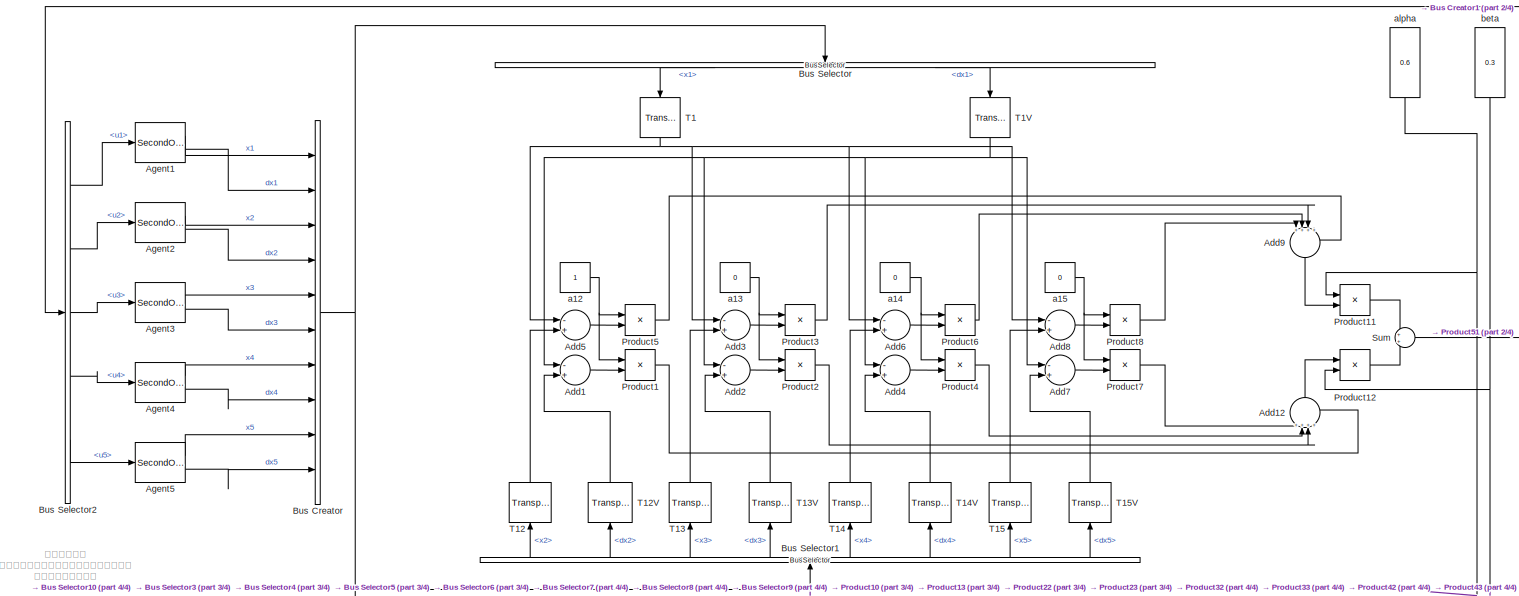
[diagram: root canvas - part 1/4, full width, top band]
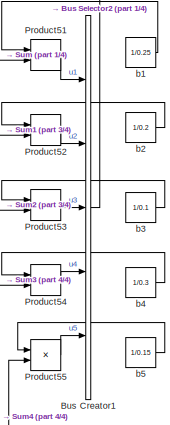
[diagram: root canvas - part 2/4, top right region]
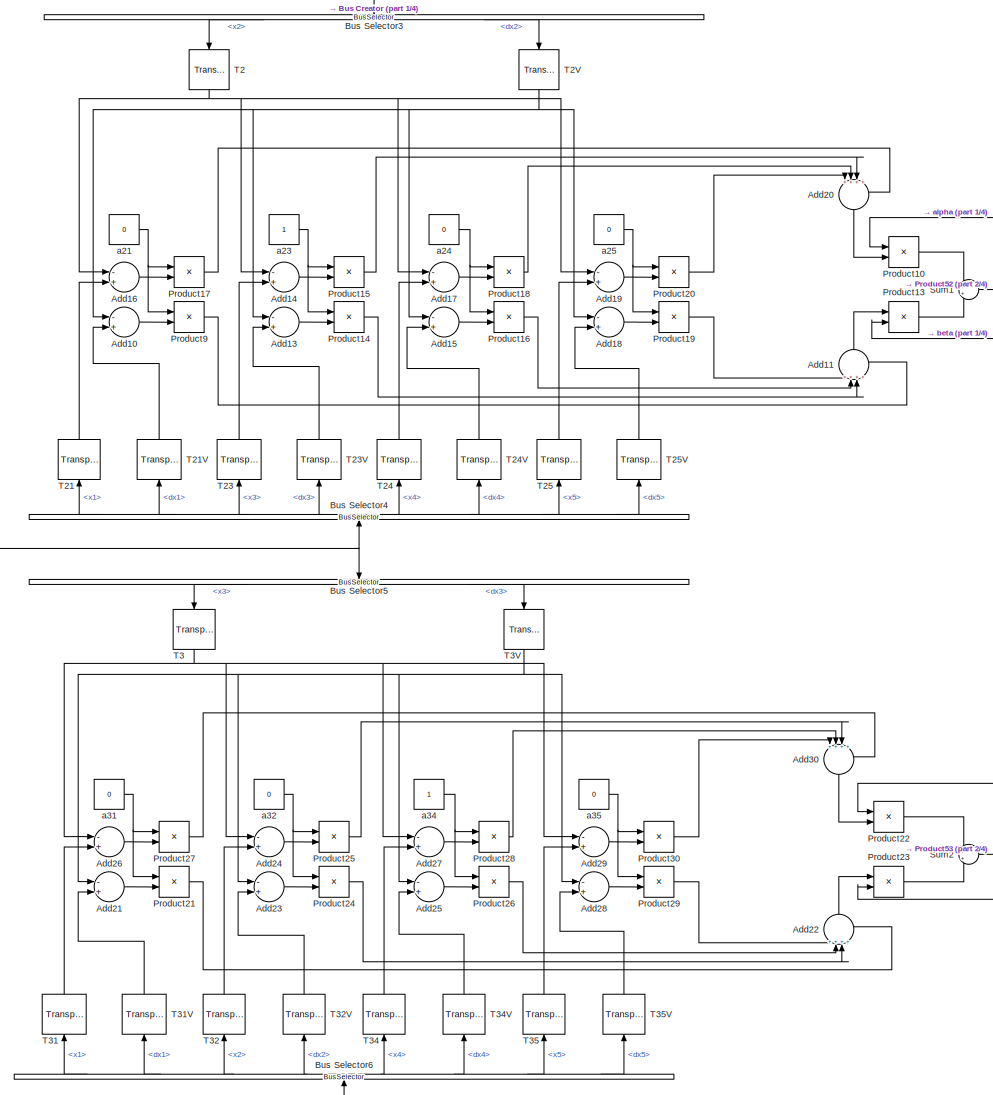
[diagram: root canvas - part 3/4, central region]
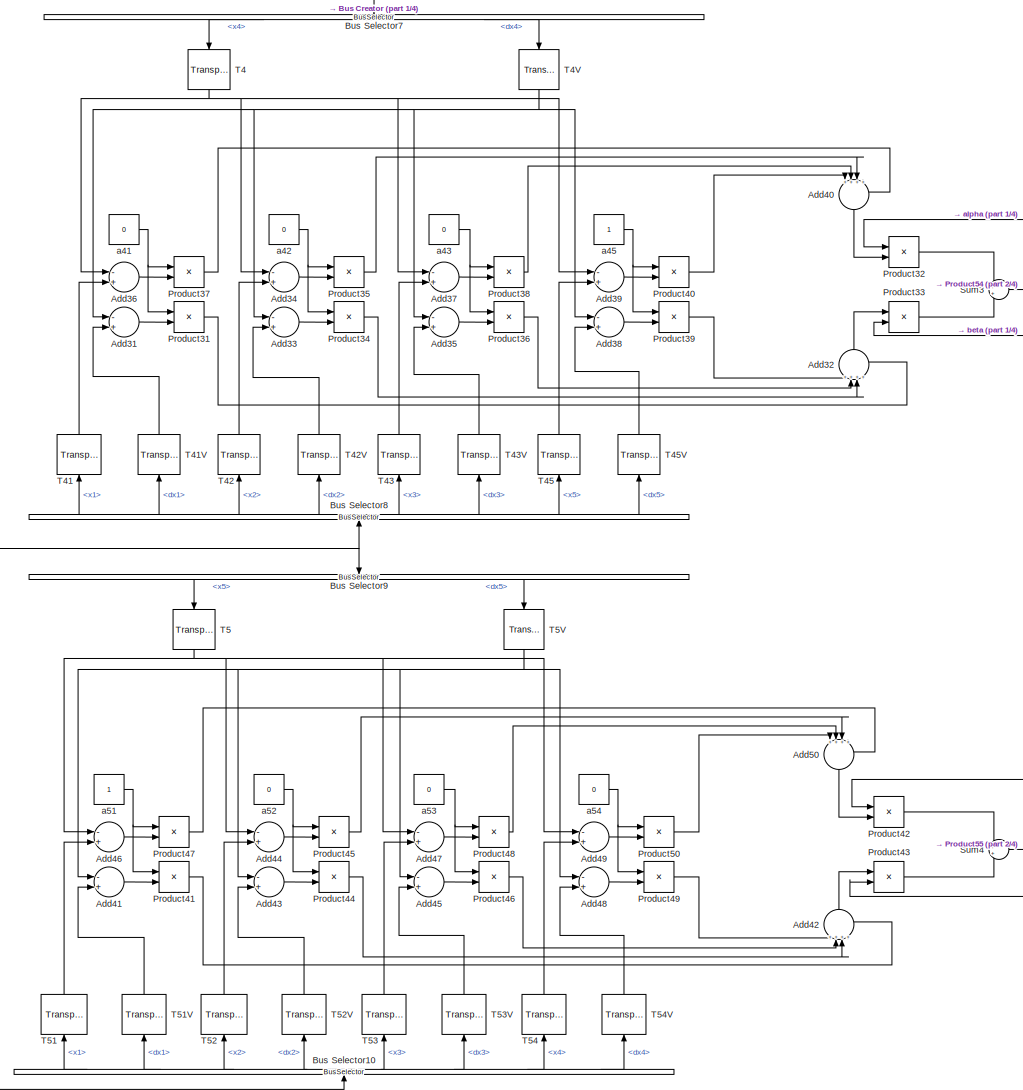
[diagram: root canvas - part 4/4, bottom center region]
MODEL slx_9dfde8e2399d
KIND model
CONFIG AbsTol = auto
CONFIG EnableMultiTasking = off
CONFIG FixedStep = auto
CONFIG MaxStep = auto
CONFIG MinStep = auto
CONFIG RelTol = 1e-3
CONFIG SampleTimeConstraint = Unconstrained
CONFIG Solver = VariableStepAuto
CONFIG SolverName = VariableStepAuto
CONFIG StartTime = 0.0
CONFIG StopTime = 50
BLOCK [Sum] Add1
  InputSameDT = off
  Inputs = -+
  OutDataTypeStr = Inherit: Inherit via internal rule
  Ports = [2, 1]
  SaturateOnIntegerOverflow = off
BLOCK [Sum] Add10
  InputSameDT = off
  Inputs = -+
  OutDataTypeStr = Inherit: Inherit via internal rule
  Ports = [2, 1]
  SaturateOnIntegerOverflow = off
BLOCK [Sum] Add11
  IconShape = round
  InputSameDT = off
  Inputs = ++++
  OutDataTypeStr = Inherit: Inherit via internal rule
  Ports = [4, 1]
  SaturateOnIntegerOverflow = off
BLOCK [Sum] Add12
  IconShape = round
  InputSameDT = off
  Inputs = ++++
  OutDataTypeStr = Inherit: Inherit via internal rule
  Ports = [4, 1]
  SaturateOnIntegerOverflow = off
BLOCK [Sum] Add13
  InputSameDT = off
  Inputs = -+
  OutDataTypeStr = Inherit: Inherit via internal rule
  Ports = [2, 1]
  SaturateOnIntegerOverflow = off
BLOCK [Sum] Add14
  InputSameDT = off
  Inputs = -+
  OutDataTypeStr = Inherit: Inherit via internal rule
  Ports = [2, 1]
  SaturateOnIntegerOverflow = off
BLOCK [Sum] Add15
  InputSameDT = off
  Inputs = -+
  OutDataTypeStr = Inherit: Inherit via internal rule
  Ports = [2, 1]
  SaturateOnIntegerOverflow = off
BLOCK [Sum] Add16
  InputSameDT = off
  Inputs = -+
  OutDataTypeStr = Inherit: Inherit via internal rule
  Ports = [2, 1]
  SaturateOnIntegerOverflow = off
BLOCK [Sum] Add17
  InputSameDT = off
  Inputs = -+
  OutDataTypeStr = Inherit: Inherit via internal rule
  Ports = [2, 1]
  SaturateOnIntegerOverflow = off
BLOCK [Sum] Add18
  InputSameDT = off
  Inputs = -+
  OutDataTypeStr = Inherit: Inherit via internal rule
  Ports = [2, 1]
  SaturateOnIntegerOverflow = off
BLOCK [Sum] Add19
  InputSameDT = off
  Inputs = -+
  OutDataTypeStr = Inherit: Inherit via internal rule
  Ports = [2, 1]
  SaturateOnIntegerOverflow = off
BLOCK [Sum] Add2
  InputSameDT = off
  Inputs = -+
  OutDataTypeStr = Inherit: Inherit via internal rule
  Ports = [2, 1]
  SaturateOnIntegerOverflow = off
BLOCK [Sum] Add20
  IconShape = round
  InputSameDT = off
  Inputs = ++++
  OutDataTypeStr = Inherit: Inherit via internal rule
  Ports = [4, 1]
  SaturateOnIntegerOverflow = off
BLOCK [Sum] Add21
  InputSameDT = off
  Inputs = -+
  OutDataTypeStr = Inherit: Inherit via internal rule
  Ports = [2, 1]
  SaturateOnIntegerOverflow = off
BLOCK [Sum] Add22
  IconShape = round
  InputSameDT = off
  Inputs = ++++
  OutDataTypeStr = Inherit: Inherit via internal rule
  Ports = [4, 1]
  SaturateOnIntegerOverflow = off
BLOCK [Sum] Add23
  InputSameDT = off
  Inputs = -+
  OutDataTypeStr = Inherit: Inherit via internal rule
  Ports = [2, 1]
  SaturateOnIntegerOverflow = off
BLOCK [Sum] Add24
  InputSameDT = off
  Inputs = -+
  OutDataTypeStr = Inherit: Inherit via internal rule
  Ports = [2, 1]
  SaturateOnIntegerOverflow = off
BLOCK [Sum] Add25
  InputSameDT = off
  Inputs = -+
  OutDataTypeStr = Inherit: Inherit via internal rule
  Ports = [2, 1]
  SaturateOnIntegerOverflow = off
BLOCK [Sum] Add26
  InputSameDT = off
  Inputs = -+
  OutDataTypeStr = Inherit: Inherit via internal rule
  Ports = [2, 1]
  SaturateOnIntegerOverflow = off
BLOCK [Sum] Add27
  InputSameDT = off
  Inputs = -+
  OutDataTypeStr = Inherit: Inherit via internal rule
  Ports = [2, 1]
  SaturateOnIntegerOverflow = off
BLOCK [Sum] Add28
  InputSameDT = off
  Inputs = -+
  OutDataTypeStr = Inherit: Inherit via internal rule
  Ports = [2, 1]
  SaturateOnIntegerOverflow = off
BLOCK [Sum] Add29
  InputSameDT = off
  Inputs = -+
  OutDataTypeStr = Inherit: Inherit via internal rule
  Ports = [2, 1]
  SaturateOnIntegerOverflow = off
BLOCK [Sum] Add3
  InputSameDT = off
  Inputs = -+
  OutDataTypeStr = Inherit: Inherit via internal rule
  Ports = [2, 1]
  SaturateOnIntegerOverflow = off
BLOCK [Sum] Add30
  IconShape = round
  InputSameDT = off
  Inputs = ++++
  OutDataTypeStr = Inherit: Inherit via internal rule
  Ports = [4, 1]
  SaturateOnIntegerOverflow = off
BLOCK [Sum] Add31
  InputSameDT = off
  Inputs = -+
  OutDataTypeStr = Inherit: Inherit via internal rule
  Ports = [2, 1]
  SaturateOnIntegerOverflow = off
BLOCK [Sum] Add32
  IconShape = round
  InputSameDT = off
  Inputs = ++++
  OutDataTypeStr = Inherit: Inherit via internal rule
  Ports = [4, 1]
  SaturateOnIntegerOverflow = off
BLOCK [Sum] Add33
  InputSameDT = off
  Inputs = -+
  OutDataTypeStr = Inherit: Inherit via internal rule
  Ports = [2, 1]
  SaturateOnIntegerOverflow = off
BLOCK [Sum] Add34
  InputSameDT = off
  Inputs = -+
  OutDataTypeStr = Inherit: Inherit via internal rule
  Ports = [2, 1]
  SaturateOnIntegerOverflow = off
BLOCK [Sum] Add35
  InputSameDT = off
  Inputs = -+
  OutDataTypeStr = Inherit: Inherit via internal rule
  Ports = [2, 1]
  SaturateOnIntegerOverflow = off
BLOCK [Sum] Add36
  InputSameDT = off
  Inputs = -+
  OutDataTypeStr = Inherit: Inherit via internal rule
  Ports = [2, 1]
  SaturateOnIntegerOverflow = off
BLOCK [Sum] Add37
  InputSameDT = off
  Inputs = -+
  OutDataTypeStr = Inherit: Inherit via internal rule
  Ports = [2, 1]
  SaturateOnIntegerOverflow = off
BLOCK [Sum] Add38
  InputSameDT = off
  Inputs = -+
  OutDataTypeStr = Inherit: Inherit via internal rule
  Ports = [2, 1]
  SaturateOnIntegerOverflow = off
BLOCK [Sum] Add39
  InputSameDT = off
  Inputs = -+
  OutDataTypeStr = Inherit: Inherit via internal rule
  Ports = [2, 1]
  SaturateOnIntegerOverflow = off
BLOCK [Sum] Add4
  InputSameDT = off
  Inputs = -+
  OutDataTypeStr = Inherit: Inherit via internal rule
  Ports = [2, 1]
  SaturateOnIntegerOverflow = off
BLOCK [Sum] Add40
  IconShape = round
  InputSameDT = off
  Inputs = ++++
  OutDataTypeStr = Inherit: Inherit via internal rule
  Ports = [4, 1]
  SaturateOnIntegerOverflow = off
BLOCK [Sum] Add41
  InputSameDT = off
  Inputs = -+
  OutDataTypeStr = Inherit: Inherit via internal rule
  Ports = [2, 1]
  SaturateOnIntegerOverflow = off
BLOCK [Sum] Add42
  IconShape = round
  InputSameDT = off
  Inputs = ++++
  OutDataTypeStr = Inherit: Inherit via internal rule
  Ports = [4, 1]
  SaturateOnIntegerOverflow = off
BLOCK [Sum] Add43
  InputSameDT = off
  Inputs = -+
  OutDataTypeStr = Inherit: Inherit via internal rule
  Ports = [2, 1]
  SaturateOnIntegerOverflow = off
BLOCK [Sum] Add44
  InputSameDT = off
  Inputs = -+
  OutDataTypeStr = Inherit: Inherit via internal rule
  Ports = [2, 1]
  SaturateOnIntegerOverflow = off
BLOCK [Sum] Add45
  InputSameDT = off
  Inputs = -+
  OutDataTypeStr = Inherit: Inherit via internal rule
  Ports = [2, 1]
  SaturateOnIntegerOverflow = off
BLOCK [Sum] Add46
  InputSameDT = off
  Inputs = -+
  OutDataTypeStr = Inherit: Inherit via internal rule
  Ports = [2, 1]
  SaturateOnIntegerOverflow = off
BLOCK [Sum] Add47
  InputSameDT = off
  Inputs = -+
  OutDataTypeStr = Inherit: Inherit via internal rule
  Ports = [2, 1]
  SaturateOnIntegerOverflow = off
BLOCK [Sum] Add48
  InputSameDT = off
  Inputs = -+
  OutDataTypeStr = Inherit: Inherit via internal rule
  Ports = [2, 1]
  SaturateOnIntegerOverflow = off
BLOCK [Sum] Add49
  InputSameDT = off
  Inputs = -+
  OutDataTypeStr = Inherit: Inherit via internal rule
  Ports = [2, 1]
  SaturateOnIntegerOverflow = off
BLOCK [Sum] Add5
  InputSameDT = off
  Inputs = -+
  OutDataTypeStr = Inherit: Inherit via internal rule
  Ports = [2, 1]
  SaturateOnIntegerOverflow = off
BLOCK [Sum] Add50
  IconShape = round
  InputSameDT = off
  Inputs = ++++
  OutDataTypeStr = Inherit: Inherit via internal rule
  Ports = [4, 1]
  SaturateOnIntegerOverflow = off
BLOCK [Sum] Add6
  InputSameDT = off
  Inputs = -+
  OutDataTypeStr = Inherit: Inherit via internal rule
  Ports = [2, 1]
  SaturateOnIntegerOverflow = off
BLOCK [Sum] Add7
  InputSameDT = off
  Inputs = -+
  OutDataTypeStr = Inherit: Inherit via internal rule
  Ports = [2, 1]
  SaturateOnIntegerOverflow = off
BLOCK [Sum] Add8
  InputSameDT = off
  Inputs = -+
  OutDataTypeStr = Inherit: Inherit via internal rule
  Ports = [2, 1]
  SaturateOnIntegerOverflow = off
BLOCK [Sum] Add9
  IconShape = round
  InputSameDT = off
  Inputs = ++++
  OutDataTypeStr = Inherit: Inherit via internal rule
  Ports = [4, 1]
  SaturateOnIntegerOverflow = off
BLOCK [SecondOrderIntegrator] Agent1
  ICDXDT = 4
  ICX = 40
  Ports = [1, 2]
BLOCK [SecondOrderIntegrator] Agent2
  ICDXDT = 5
  ICX = 55
  Ports = [1, 2]
BLOCK [SecondOrderIntegrator] Agent3
  ICDXDT = 20
  ICX = 75
  Ports = [1, 2]
BLOCK [SecondOrderIntegrator] Agent4
  ICDXDT = 10
  ICX = 60
  Ports = [1, 2]
BLOCK [SecondOrderIntegrator] Agent5
  ICDXDT = 20
  ICX = 80
  Ports = [1, 2]
BLOCK [BusCreator] Bus Creator
  DisplayOption = bar
  InheritFromInputs = on
  Inputs = 10
  Ports = [10, 1]
BLOCK [BusCreator] Bus Creator1
  DisplayOption = bar
  InheritFromInputs = on
  Inputs = 5
  Ports = [5, 1]
BLOCK [BusSelector] Bus Selector
  OutputAsBus = off
  OutputSignals = x1,dx1
  Ports = [1, 2]
BLOCK [BusSelector] Bus Selector1
  OutputAsBus = off
  OutputSignals = x2,dx2,x3,dx3,x4,dx4,x5,dx5
  Ports = [1, 8]
BLOCK [BusSelector] Bus Selector10
  OutputAsBus = off
  OutputSignals = x1,dx1,x2,dx2,x3,dx3,x4,dx4
  Ports = [1, 8]
BLOCK [BusSelector] Bus Selector2
  OutputAsBus = off
  OutputSignals = u1,u2,u3,u4,u5
  Ports = [1, 5]
BLOCK [BusSelector] Bus Selector3
  OutputAsBus = off
  OutputSignals = x2,dx2
  Ports = [1, 2]
BLOCK [BusSelector] Bus Selector4
  OutputAsBus = off
  OutputSignals = x1,dx1,x3,dx3,x4,dx4,x5,dx5
  Ports = [1, 8]
BLOCK [BusSelector] Bus Selector5
  OutputAsBus = off
  OutputSignals = x3,dx3
  Ports = [1, 2]
BLOCK [BusSelector] Bus Selector6
  OutputAsBus = off
  OutputSignals = x1,dx1,x2,dx2,x4,dx4,x5,dx5
  Ports = [1, 8]
BLOCK [BusSelector] Bus Selector7
  OutputAsBus = off
  OutputSignals = x4,dx4
  Ports = [1, 2]
BLOCK [BusSelector] Bus Selector8
  OutputAsBus = off
  OutputSignals = x1,dx1,x2,dx2,x3,dx3,x5,dx5
  Ports = [1, 8]
BLOCK [BusSelector] Bus Selector9
  OutputAsBus = off
  OutputSignals = x5,dx5
  Ports = [1, 2]
BLOCK [Product] Product1
  InputSameDT = off
  OutDataTypeStr = Inherit: Inherit via internal rule
  Ports = [2, 1]
  RndMeth = Floor
  SaturateOnIntegerOverflow = off
BLOCK [Product] Product10
  InputSameDT = off
  OutDataTypeStr = Inherit: Inherit via internal rule
  Ports = [2, 1]
  RndMeth = Floor
  SaturateOnIntegerOverflow = off
BLOCK [Product] Product11
  InputSameDT = off
  OutDataTypeStr = Inherit: Inherit via internal rule
  Ports = [2, 1]
  RndMeth = Floor
  SaturateOnIntegerOverflow = off
BLOCK [Product] Product12
  InputSameDT = off
  OutDataTypeStr = Inherit: Inherit via internal rule
  Ports = [2, 1]
  RndMeth = Floor
  SaturateOnIntegerOverflow = off
BLOCK [Product] Product13
  InputSameDT = off
  OutDataTypeStr = Inherit: Inherit via internal rule
  Ports = [2, 1]
  RndMeth = Floor
  SaturateOnIntegerOverflow = off
BLOCK [Product] Product14
  InputSameDT = off
  OutDataTypeStr = Inherit: Inherit via internal rule
  Ports = [2, 1]
  RndMeth = Floor
  SaturateOnIntegerOverflow = off
BLOCK [Product] Product15
  InputSameDT = off
  OutDataTypeStr = Inherit: Inherit via internal rule
  Ports = [2, 1]
  RndMeth = Floor
  SaturateOnIntegerOverflow = off
BLOCK [Product] Product16
  InputSameDT = off
  OutDataTypeStr = Inherit: Inherit via internal rule
  Ports = [2, 1]
  RndMeth = Floor
  SaturateOnIntegerOverflow = off
BLOCK [Product] Product17
  InputSameDT = off
  OutDataTypeStr = Inherit: Inherit via internal rule
  Ports = [2, 1]
  RndMeth = Floor
  SaturateOnIntegerOverflow = off
BLOCK [Product] Product18
  InputSameDT = off
  OutDataTypeStr = Inherit: Inherit via internal rule
  Ports = [2, 1]
  RndMeth = Floor
  SaturateOnIntegerOverflow = off
BLOCK [Product] Product19
  InputSameDT = off
  OutDataTypeStr = Inherit: Inherit via internal rule
  Ports = [2, 1]
  RndMeth = Floor
  SaturateOnIntegerOverflow = off
BLOCK [Product] Product2
  InputSameDT = off
  OutDataTypeStr = Inherit: Inherit via internal rule
  Ports = [2, 1]
  RndMeth = Floor
  SaturateOnIntegerOverflow = off
BLOCK [Product] Product20
  InputSameDT = off
  OutDataTypeStr = Inherit: Inherit via internal rule
  Ports = [2, 1]
  RndMeth = Floor
  SaturateOnIntegerOverflow = off
BLOCK [Product] Product21
  InputSameDT = off
  OutDataTypeStr = Inherit: Inherit via internal rule
  Ports = [2, 1]
  RndMeth = Floor
  SaturateOnIntegerOverflow = off
BLOCK [Product] Product22
  InputSameDT = off
  OutDataTypeStr = Inherit: Inherit via internal rule
  Ports = [2, 1]
  RndMeth = Floor
  SaturateOnIntegerOverflow = off
BLOCK [Product] Product23
  InputSameDT = off
  OutDataTypeStr = Inherit: Inherit via internal rule
  Ports = [2, 1]
  RndMeth = Floor
  SaturateOnIntegerOverflow = off
BLOCK [Product] Product24
  InputSameDT = off
  OutDataTypeStr = Inherit: Inherit via internal rule
  Ports = [2, 1]
  RndMeth = Floor
  SaturateOnIntegerOverflow = off
BLOCK [Product] Product25
  InputSameDT = off
  OutDataTypeStr = Inherit: Inherit via internal rule
  Ports = [2, 1]
  RndMeth = Floor
  SaturateOnIntegerOverflow = off
BLOCK [Product] Product26
  InputSameDT = off
  OutDataTypeStr = Inherit: Inherit via internal rule
  Ports = [2, 1]
  RndMeth = Floor
  SaturateOnIntegerOverflow = off
BLOCK [Product] Product27
  InputSameDT = off
  OutDataTypeStr = Inherit: Inherit via internal rule
  Ports = [2, 1]
  RndMeth = Floor
  SaturateOnIntegerOverflow = off
BLOCK [Product] Product28
  InputSameDT = off
  OutDataTypeStr = Inherit: Inherit via internal rule
  Ports = [2, 1]
  RndMeth = Floor
  SaturateOnIntegerOverflow = off
BLOCK [Product] Product29
  InputSameDT = off
  OutDataTypeStr = Inherit: Inherit via internal rule
  Ports = [2, 1]
  RndMeth = Floor
  SaturateOnIntegerOverflow = off
BLOCK [Product] Product3
  InputSameDT = off
  OutDataTypeStr = Inherit: Inherit via internal rule
  Ports = [2, 1]
  RndMeth = Floor
  SaturateOnIntegerOverflow = off
BLOCK [Product] Product30
  InputSameDT = off
  OutDataTypeStr = Inherit: Inherit via internal rule
  Ports = [2, 1]
  RndMeth = Floor
  SaturateOnIntegerOverflow = off
BLOCK [Product] Product31
  InputSameDT = off
  OutDataTypeStr = Inherit: Inherit via internal rule
  Ports = [2, 1]
  RndMeth = Floor
  SaturateOnIntegerOverflow = off
BLOCK [Product] Product32
  InputSameDT = off
  OutDataTypeStr = Inherit: Inherit via internal rule
  Ports = [2, 1]
  RndMeth = Floor
  SaturateOnIntegerOverflow = off
BLOCK [Product] Product33
  InputSameDT = off
  OutDataTypeStr = Inherit: Inherit via internal rule
  Ports = [2, 1]
  RndMeth = Floor
  SaturateOnIntegerOverflow = off
BLOCK [Product] Product34
  InputSameDT = off
  OutDataTypeStr = Inherit: Inherit via internal rule
  Ports = [2, 1]
  RndMeth = Floor
  SaturateOnIntegerOverflow = off
BLOCK [Product] Product35
  InputSameDT = off
  OutDataTypeStr = Inherit: Inherit via internal rule
  Ports = [2, 1]
  RndMeth = Floor
  SaturateOnIntegerOverflow = off
BLOCK [Product] Product36
  InputSameDT = off
  OutDataTypeStr = Inherit: Inherit via internal rule
  Ports = [2, 1]
  RndMeth = Floor
  SaturateOnIntegerOverflow = off
BLOCK [Product] Product37
  InputSameDT = off
  OutDataTypeStr = Inherit: Inherit via internal rule
  Ports = [2, 1]
  RndMeth = Floor
  SaturateOnIntegerOverflow = off
BLOCK [Product] Product38
  InputSameDT = off
  OutDataTypeStr = Inherit: Inherit via internal rule
  Ports = [2, 1]
  RndMeth = Floor
  SaturateOnIntegerOverflow = off
BLOCK [Product] Product39
  InputSameDT = off
  OutDataTypeStr = Inherit: Inherit via internal rule
  Ports = [2, 1]
  RndMeth = Floor
  SaturateOnIntegerOverflow = off
BLOCK [Product] Product4
  InputSameDT = off
  OutDataTypeStr = Inherit: Inherit via internal rule
  Ports = [2, 1]
  RndMeth = Floor
  SaturateOnIntegerOverflow = off
BLOCK [Product] Product40
  InputSameDT = off
  OutDataTypeStr = Inherit: Inherit via internal rule
  Ports = [2, 1]
  RndMeth = Floor
  SaturateOnIntegerOverflow = off
BLOCK [Product] Product41
  InputSameDT = off
  OutDataTypeStr = Inherit: Inherit via internal rule
  Ports = [2, 1]
  RndMeth = Floor
  SaturateOnIntegerOverflow = off
BLOCK [Product] Product42
  InputSameDT = off
  OutDataTypeStr = Inherit: Inherit via internal rule
  Ports = [2, 1]
  RndMeth = Floor
  SaturateOnIntegerOverflow = off
BLOCK [Product] Product43
  InputSameDT = off
  OutDataTypeStr = Inherit: Inherit via internal rule
  Ports = [2, 1]
  RndMeth = Floor
  SaturateOnIntegerOverflow = off
BLOCK [Product] Product44
  InputSameDT = off
  OutDataTypeStr = Inherit: Inherit via internal rule
  Ports = [2, 1]
  RndMeth = Floor
  SaturateOnIntegerOverflow = off
BLOCK [Product] Product45
  InputSameDT = off
  OutDataTypeStr = Inherit: Inherit via internal rule
  Ports = [2, 1]
  RndMeth = Floor
  SaturateOnIntegerOverflow = off
BLOCK [Product] Product46
  InputSameDT = off
  OutDataTypeStr = Inherit: Inherit via internal rule
  Ports = [2, 1]
  RndMeth = Floor
  SaturateOnIntegerOverflow = off
BLOCK [Product] Product47
  InputSameDT = off
  OutDataTypeStr = Inherit: Inherit via internal rule
  Ports = [2, 1]
  RndMeth = Floor
  SaturateOnIntegerOverflow = off
BLOCK [Product] Product48
  InputSameDT = off
  OutDataTypeStr = Inherit: Inherit via internal rule
  Ports = [2, 1]
  RndMeth = Floor
  SaturateOnIntegerOverflow = off
BLOCK [Product] Product49
  InputSameDT = off
  OutDataTypeStr = Inherit: Inherit via internal rule
  Ports = [2, 1]
  RndMeth = Floor
  SaturateOnIntegerOverflow = off
BLOCK [Product] Product5
  InputSameDT = off
  OutDataTypeStr = Inherit: Inherit via internal rule
  Ports = [2, 1]
  RndMeth = Floor
  SaturateOnIntegerOverflow = off
BLOCK [Product] Product50
  InputSameDT = off
  OutDataTypeStr = Inherit: Inherit via internal rule
  Ports = [2, 1]
  RndMeth = Floor
  SaturateOnIntegerOverflow = off
BLOCK [Product] Product51
  InputSameDT = off
  OutDataTypeStr = Inherit: Inherit via internal rule
  Ports = [2, 1]
  RndMeth = Floor
  SaturateOnIntegerOverflow = off
BLOCK [Product] Product52
  InputSameDT = off
  OutDataTypeStr = Inherit: Inherit via internal rule
  Ports = [2, 1]
  RndMeth = Floor
  SaturateOnIntegerOverflow = off
BLOCK [Product] Product53
  InputSameDT = off
  OutDataTypeStr = Inherit: Inherit via internal rule
  Ports = [2, 1]
  RndMeth = Floor
  SaturateOnIntegerOverflow = off
BLOCK [Product] Product54
  InputSameDT = off
  OutDataTypeStr = Inherit: Inherit via internal rule
  Ports = [2, 1]
  RndMeth = Floor
  SaturateOnIntegerOverflow = off
BLOCK [Product] Product55
  InputSameDT = off
  OutDataTypeStr = Inherit: Inherit via internal rule
  Ports = [2, 1]
  RndMeth = Floor
  SaturateOnIntegerOverflow = off
BLOCK [Product] Product6
  InputSameDT = off
  OutDataTypeStr = Inherit: Inherit via internal rule
  Ports = [2, 1]
  RndMeth = Floor
  SaturateOnIntegerOverflow = off
BLOCK [Product] Product7
  InputSameDT = off
  OutDataTypeStr = Inherit: Inherit via internal rule
  Ports = [2, 1]
  RndMeth = Floor
  SaturateOnIntegerOverflow = off
BLOCK [Product] Product8
  InputSameDT = off
  OutDataTypeStr = Inherit: Inherit via internal rule
  Ports = [2, 1]
  RndMeth = Floor
  SaturateOnIntegerOverflow = off
BLOCK [Product] Product9
  InputSameDT = off
  OutDataTypeStr = Inherit: Inherit via internal rule
  Ports = [2, 1]
  RndMeth = Floor
  SaturateOnIntegerOverflow = off
BLOCK [Sum] Sum
  IconShape = round
  InputSameDT = off
  OutDataTypeStr = Inherit: Inherit via internal rule
  Ports = [2, 1]
  SaturateOnIntegerOverflow = off
BLOCK [Sum] Sum1
  IconShape = round
  InputSameDT = off
  OutDataTypeStr = Inherit: Inherit via internal rule
  Ports = [2, 1]
  SaturateOnIntegerOverflow = off
BLOCK [Sum] Sum2
  IconShape = round
  InputSameDT = off
  OutDataTypeStr = Inherit: Inherit via internal rule
  Ports = [2, 1]
  SaturateOnIntegerOverflow = off
BLOCK [Sum] Sum3
  IconShape = round
  InputSameDT = off
  OutDataTypeStr = Inherit: Inherit via internal rule
  Ports = [2, 1]
  SaturateOnIntegerOverflow = off
BLOCK [Sum] Sum4
  IconShape = round
  InputSameDT = off
  OutDataTypeStr = Inherit: Inherit via internal rule
  Ports = [2, 1]
  SaturateOnIntegerOverflow = off
BLOCK [TransportDelay] T1
  DelayTime = 0
  Ports = [1, 1]
BLOCK [TransportDelay] T12
  DelayTime = 0
  Ports = [1, 1]
BLOCK [TransportDelay] T12V
  DelayTime = 0
  Ports = [1, 1]
BLOCK [TransportDelay] T13
  DelayTime = 0
  Ports = [1, 1]
BLOCK [TransportDelay] T13V
  DelayTime = 0
  Ports = [1, 1]
BLOCK [TransportDelay] T14
  DelayTime = 0
  Ports = [1, 1]
BLOCK [TransportDelay] T14V
  DelayTime = 0
  Ports = [1, 1]
BLOCK [TransportDelay] T15
  DelayTime = 0
  Ports = [1, 1]
BLOCK [TransportDelay] T15V
  DelayTime = 0
  Ports = [1, 1]
BLOCK [TransportDelay] T1V
  DelayTime = 0
  Ports = [1, 1]
BLOCK [TransportDelay] T2
  DelayTime = 0
  Ports = [1, 1]
BLOCK [TransportDelay] T21
  DelayTime = 0
  Ports = [1, 1]
BLOCK [TransportDelay] T21V
  DelayTime = 0
  Ports = [1, 1]
BLOCK [TransportDelay] T23
  DelayTime = 0
  Ports = [1, 1]
BLOCK [TransportDelay] T23V
  DelayTime = 0
  Ports = [1, 1]
BLOCK [TransportDelay] T24
  DelayTime = 0
  Ports = [1, 1]
BLOCK [TransportDelay] T24V
  DelayTime = 0
  Ports = [1, 1]
BLOCK [TransportDelay] T25
  DelayTime = 0
  Ports = [1, 1]
BLOCK [TransportDelay] T25V
  DelayTime = 0
  Ports = [1, 1]
BLOCK [TransportDelay] T2V
  DelayTime = 0
  Ports = [1, 1]
BLOCK [TransportDelay] T3
  DelayTime = 0
  Ports = [1, 1]
BLOCK [TransportDelay] T31
  DelayTime = 0
  Ports = [1, 1]
BLOCK [TransportDelay] T31V
  DelayTime = 0
  Ports = [1, 1]
BLOCK [TransportDelay] T32
  DelayTime = 0
  Ports = [1, 1]
BLOCK [TransportDelay] T32V
  DelayTime = 0
  Ports = [1, 1]
BLOCK [TransportDelay] T34
  DelayTime = 0
  Ports = [1, 1]
BLOCK [TransportDelay] T34V
  DelayTime = 0
  Ports = [1, 1]
BLOCK [TransportDelay] T35
  DelayTime = 0
  Ports = [1, 1]
BLOCK [TransportDelay] T35V
  DelayTime = 0
  Ports = [1, 1]
BLOCK [TransportDelay] T3V
  DelayTime = 0
  Ports = [1, 1]
BLOCK [TransportDelay] T4
  DelayTime = 0
  Ports = [1, 1]
BLOCK [TransportDelay] T41
  DelayTime = 0
  Ports = [1, 1]
BLOCK [TransportDelay] T41V
  DelayTime = 0
  Ports = [1, 1]
BLOCK [TransportDelay] T42
  DelayTime = 0
  Ports = [1, 1]
BLOCK [TransportDelay] T42V
  DelayTime = 0
  Ports = [1, 1]
BLOCK [TransportDelay] T43
  DelayTime = 0
  Ports = [1, 1]
BLOCK [TransportDelay] T43V
  DelayTime = 0
  Ports = [1, 1]
BLOCK [TransportDelay] T45
  DelayTime = 0
  Ports = [1, 1]
BLOCK [TransportDelay] T45V
  DelayTime = 0
  Ports = [1, 1]
BLOCK [TransportDelay] T4V
  DelayTime = 0
  Ports = [1, 1]
BLOCK [TransportDelay] T5
  DelayTime = 0
  Ports = [1, 1]
BLOCK [TransportDelay] T51
  DelayTime = 0
  Ports = [1, 1]
BLOCK [TransportDelay] T51V
  DelayTime = 0
  Ports = [1, 1]
BLOCK [TransportDelay] T52
  DelayTime = 0
  Ports = [1, 1]
BLOCK [TransportDelay] T52V
  DelayTime = 0
  Ports = [1, 1]
BLOCK [TransportDelay] T53
  DelayTime = 0
  Ports = [1, 1]
BLOCK [TransportDelay] T53V
  DelayTime = 0
  Ports = [1, 1]
BLOCK [TransportDelay] T54
  DelayTime = 0
  Ports = [1, 1]
BLOCK [TransportDelay] T54V
  DelayTime = 0
  Ports = [1, 1]
BLOCK [TransportDelay] T5V
  DelayTime = 0
  Ports = [1, 1]
BLOCK [Constant] a12
BLOCK [Constant] a13
  Value = 0
BLOCK [Constant] a14
  Value = 0
BLOCK [Constant] a15
  Value = 0
BLOCK [Constant] a21
  Value = 0
BLOCK [Constant] a23
BLOCK [Constant] a24
  Value = 0
BLOCK [Constant] a25
  Value = 0
BLOCK [Constant] a31
  Value = 0
BLOCK [Constant] a32
  Value = 0
BLOCK [Constant] a34
BLOCK [Constant] a35
  Value = 0
BLOCK [Constant] a41
  Value = 0
BLOCK [Constant] a42
  Value = 0
BLOCK [Constant] a43
  Value = 0
BLOCK [Constant] a45
BLOCK [Constant] a51
BLOCK [Constant] a52
  Value = 0
BLOCK [Constant] a53
  Value = 0
BLOCK [Constant] a54
  Value = 0
BLOCK [Constant] alpha
  Value = 0.6
BLOCK [Constant] b1
  Value = 1/0.25
BLOCK [Constant] b2
  Value = 1/0.2
BLOCK [Constant] b3
  Value = 1/0.1
BLOCK [Constant] b4
  Value = 1/0.3
BLOCK [Constant] b5
  Value = 1/0.15
BLOCK [Constant] beta
  Value = 0.3
ANNOTATION (root): 蓝色为权重； 粉色为时滞，同一节点时滞需要保持一致； 注意，要使用入度。
LINE Add10:1 -> Product9:2
LINE Add11:1 -> Product13:1
LINE Add12:1 -> Product12:1
LINE Add13:1 -> Product14:2
LINE Add14:1 -> Product15:2
LINE Add15:1 -> Product16:2
LINE Add16:1 -> Product17:2
LINE Add17:1 -> Product18:2
LINE Add18:1 -> Product19:2
LINE Add19:1 -> Product20:2
LINE Add1:1 -> Product1:2
LINE Add20:1 -> Product10:2
LINE Add21:1 -> Product21:2
LINE Add22:1 -> Product23:1
LINE Add23:1 -> Product24:2
LINE Add24:1 -> Product25:2
LINE Add25:1 -> Product26:2
LINE Add26:1 -> Product27:2
LINE Add27:1 -> Product28:2
LINE Add28:1 -> Product29:2
LINE Add29:1 -> Product30:2
LINE Add2:1 -> Product2:2
LINE Add30:1 -> Product22:2
LINE Add31:1 -> Product31:2
LINE Add32:1 -> Product33:1
LINE Add33:1 -> Product34:2
LINE Add34:1 -> Product35:2
LINE Add35:1 -> Product36:2
LINE Add36:1 -> Product37:2
LINE Add37:1 -> Product38:2
LINE Add38:1 -> Product39:2
LINE Add39:1 -> Product40:2
LINE Add3:1 -> Product3:2
LINE Add40:1 -> Product32:2
LINE Add41:1 -> Product41:2
LINE Add42:1 -> Product43:1
LINE Add43:1 -> Product44:2
LINE Add44:1 -> Product45:2
LINE Add45:1 -> Product46:2
LINE Add46:1 -> Product47:2
LINE Add47:1 -> Product48:2
LINE Add48:1 -> Product49:2
LINE Add49:1 -> Product50:2
LINE Add4:1 -> Product4:2
LINE Add50:1 -> Product42:2
LINE Add5:1 -> Product5:2
LINE Add6:1 -> Product6:2
LINE Add7:1 -> Product7:2
LINE Add8:1 -> Product8:2
LINE Add9:1 -> Product11:2
LINE Agent1:1 -> Bus Creator:1
LINE Agent1:2 -> Bus Creator:2
LINE Agent2:1 -> Bus Creator:3
LINE Agent2:2 -> Bus Creator:4
LINE Agent3:1 -> Bus Creator:5
LINE Agent3:2 -> Bus Creator:6
LINE Agent4:1 -> Bus Creator:7
LINE Agent4:2 -> Bus Creator:8
LINE Agent5:1 -> Bus Creator:9
LINE Agent5:2 -> Bus Creator:10
LINE Bus Creator1:1 -> Bus Selector2:1
NET Bus Creator:1 -> Bus Selector10:1, Bus Selector1:1, Bus Selector3:1, Bus Selector4:1, Bus Selector5:1, Bus Selector6:1, Bus Selector7:1, Bus Selector8:1, Bus Selector9:1, Bus Selector:1
LINE Bus Selector10:1 -> T51:1
LINE Bus Selector10:2 -> T51V:1
LINE Bus Selector10:3 -> T52:1
LINE Bus Selector10:4 -> T52V:1
LINE Bus Selector10:5 -> T53:1
LINE Bus Selector10:6 -> T53V:1
LINE Bus Selector10:7 -> T54:1
LINE Bus Selector10:8 -> T54V:1
LINE Bus Selector1:1 -> T12:1
LINE Bus Selector1:2 -> T12V:1
LINE Bus Selector1:3 -> T13:1
LINE Bus Selector1:4 -> T13V:1
LINE Bus Selector1:5 -> T14:1
LINE Bus Selector1:6 -> T14V:1
LINE Bus Selector1:7 -> T15:1
LINE Bus Selector1:8 -> T15V:1
LINE Bus Selector2:1 -> Agent1:1
LINE Bus Selector2:2 -> Agent2:1
LINE Bus Selector2:3 -> Agent3:1
LINE Bus Selector2:4 -> Agent4:1
LINE Bus Selector2:5 -> Agent5:1
LINE Bus Selector3:1 -> T2:1
LINE Bus Selector3:2 -> T2V:1
LINE Bus Selector4:1 -> T21:1
LINE Bus Selector4:2 -> T21V:1
LINE Bus Selector4:3 -> T23:1
LINE Bus Selector4:4 -> T23V:1
LINE Bus Selector4:5 -> T24:1
LINE Bus Selector4:6 -> T24V:1
LINE Bus Selector4:7 -> T25:1
LINE Bus Selector4:8 -> T25V:1
LINE Bus Selector5:1 -> T3:1
LINE Bus Selector5:2 -> T3V:1
LINE Bus Selector6:1 -> T31:1
LINE Bus Selector6:2 -> T31V:1
LINE Bus Selector6:3 -> T32:1
LINE Bus Selector6:4 -> T32V:1
LINE Bus Selector6:5 -> T34:1
LINE Bus Selector6:6 -> T34V:1
LINE Bus Selector6:7 -> T35:1
LINE Bus Selector6:8 -> T35V:1
LINE Bus Selector7:1 -> T4:1
LINE Bus Selector7:2 -> T4V:1
LINE Bus Selector8:1 -> T41:1
LINE Bus Selector8:2 -> T41V:1
LINE Bus Selector8:3 -> T42:1
LINE Bus Selector8:4 -> T42V:1
LINE Bus Selector8:5 -> T43:1
LINE Bus Selector8:6 -> T43V:1
LINE Bus Selector8:7 -> T45:1
LINE Bus Selector8:8 -> T45V:1
LINE Bus Selector9:1 -> T5:1
LINE Bus Selector9:2 -> T5V:1
LINE Bus Selector:1 -> T1:1
LINE Bus Selector:2 -> T1V:1
LINE Product10:1 -> Sum1:1
LINE Product11:1 -> Sum:1
LINE Product12:1 -> Sum:2
LINE Product13:1 -> Sum1:2
LINE Product14:1 -> Add11:3
LINE Product15:1 -> Add20:3
LINE Product16:1 -> Add11:2
LINE Product17:1 -> Add20:4
LINE Product18:1 -> Add20:2
LINE Product19:1 -> Add11:1
LINE Product1:1 -> Add12:4
LINE Product20:1 -> Add20:1
LINE Product21:1 -> Add22:4
LINE Product22:1 -> Sum2:1
LINE Product23:1 -> Sum2:2
LINE Product24:1 -> Add22:3
LINE Product25:1 -> Add30:3
LINE Product26:1 -> Add22:2
LINE Product27:1 -> Add30:4
LINE Product28:1 -> Add30:2
LINE Product29:1 -> Add22:1
LINE Product2:1 -> Add12:3
LINE Product30:1 -> Add30:1
LINE Product31:1 -> Add32:4
LINE Product32:1 -> Sum3:1
LINE Product33:1 -> Sum3:2
LINE Product34:1 -> Add32:3
LINE Product35:1 -> Add40:3
LINE Product36:1 -> Add32:2
LINE Product37:1 -> Add40:4
LINE Product38:1 -> Add40:2
LINE Product39:1 -> Add32:1
LINE Product3:1 -> Add9:3
LINE Product40:1 -> Add40:1
LINE Product41:1 -> Add42:4
LINE Product42:1 -> Sum4:1
LINE Product43:1 -> Sum4:2
LINE Product44:1 -> Add42:3
LINE Product45:1 -> Add50:3
LINE Product46:1 -> Add42:2
LINE Product47:1 -> Add50:4
LINE Product48:1 -> Add50:2
LINE Product49:1 -> Add42:1
LINE Product4:1 -> Add12:2
LINE Product50:1 -> Add50:1
LINE Product51:1 -> Bus Creator1:1
LINE Product52:1 -> Bus Creator1:2
LINE Product53:1 -> Bus Creator1:3
LINE Product54:1 -> Bus Creator1:4
LINE Product55:1 -> Bus Creator1:5
LINE Product5:1 -> Add9:4
LINE Product6:1 -> Add9:2
LINE Product7:1 -> Add12:1
LINE Product8:1 -> Add9:1
LINE Product9:1 -> Add11:4
LINE Sum1:1 -> Product52:2
LINE Sum2:1 -> Product53:2
LINE Sum3:1 -> Product54:2
LINE Sum4:1 -> Product55:2
LINE Sum:1 -> Product51:2
LINE T12:1 -> Add5:2
LINE T12V:1 -> Add1:2
LINE T13:1 -> Add3:2
LINE T13V:1 -> Add2:2
LINE T14:1 -> Add6:2
LINE T14V:1 -> Add4:2
LINE T15:1 -> Add8:2
LINE T15V:1 -> Add7:2
NET T1:1 -> Add3:1, Add5:1, Add6:1, Add8:1
NET T1V:1 -> Add1:1, Add2:1, Add4:1, Add7:1
LINE T21:1 -> Add16:2
LINE T21V:1 -> Add10:2
LINE T23:1 -> Add14:2
LINE T23V:1 -> Add13:2
LINE T24:1 -> Add17:2
LINE T24V:1 -> Add15:2
LINE T25:1 -> Add19:2
LINE T25V:1 -> Add18:2
NET T2:1 -> Add14:1, Add16:1, Add17:1, Add19:1
NET T2V:1 -> Add10:1, Add13:1, Add15:1, Add18:1
LINE T31:1 -> Add26:2
LINE T31V:1 -> Add21:2
LINE T32:1 -> Add24:2
LINE T32V:1 -> Add23:2
LINE T34:1 -> Add27:2
LINE T34V:1 -> Add25:2
LINE T35:1 -> Add29:2
LINE T35V:1 -> Add28:2
NET T3:1 -> Add24:1, Add26:1, Add27:1, Add29:1
NET T3V:1 -> Add21:1, Add23:1, Add25:1, Add28:1
LINE T41:1 -> Add36:2
LINE T41V:1 -> Add31:2
LINE T42:1 -> Add34:2
LINE T42V:1 -> Add33:2
LINE T43:1 -> Add37:2
LINE T43V:1 -> Add35:2
LINE T45:1 -> Add39:2
LINE T45V:1 -> Add38:2
NET T4:1 -> Add34:1, Add36:1, Add37:1, Add39:1
NET T4V:1 -> Add31:1, Add33:1, Add35:1, Add38:1
LINE T51:1 -> Add46:2
LINE T51V:1 -> Add41:2
LINE T52:1 -> Add44:2
LINE T52V:1 -> Add43:2
LINE T53:1 -> Add47:2
LINE T53V:1 -> Add45:2
LINE T54:1 -> Add49:2
LINE T54V:1 -> Add48:2
NET T5:1 -> Add44:1, Add46:1, Add47:1, Add49:1
NET T5V:1 -> Add41:1, Add43:1, Add45:1, Add48:1
NET a12:1 -> Product1:1, Product5:1
NET a13:1 -> Product2:1, Product3:1
NET a14:1 -> Product4:1, Product6:1
NET a15:1 -> Product7:1, Product8:1
NET a21:1 -> Product17:1, Product9:1
NET a23:1 -> Product14:1, Product15:1
NET a24:1 -> Product16:1, Product18:1
NET a25:1 -> Product19:1, Product20:1
NET a31:1 -> Product21:1, Product27:1
NET a32:1 -> Product24:1, Product25:1
NET a34:1 -> Product26:1, Product28:1
NET a35:1 -> Product29:1, Product30:1
NET a41:1 -> Product31:1, Product37:1
NET a42:1 -> Product34:1, Product35:1
NET a43:1 -> Product36:1, Product38:1
NET a45:1 -> Product39:1, Product40:1
NET a51:1 -> Product41:1, Product47:1
NET a52:1 -> Product44:1, Product45:1
NET a53:1 -> Product46:1, Product48:1
NET a54:1 -> Product49:1, Product50:1
NET alpha:1 -> Product10:1, Product11:1, Product22:1, Product32:1, Product42:1
LINE b1:1 -> Product51:1
LINE b2:1 -> Product52:1
LINE b3:1 -> Product53:1
LINE b4:1 -> Product54:1
LINE b5:1 -> Product55:1
NET beta:1 -> Product12:2, Product13:2, Product23:2, Product33:2, Product43:2
note: NET lines group one-source signal fan-out (src -> all destinations, sorted); 1:1 wires keep LINE
